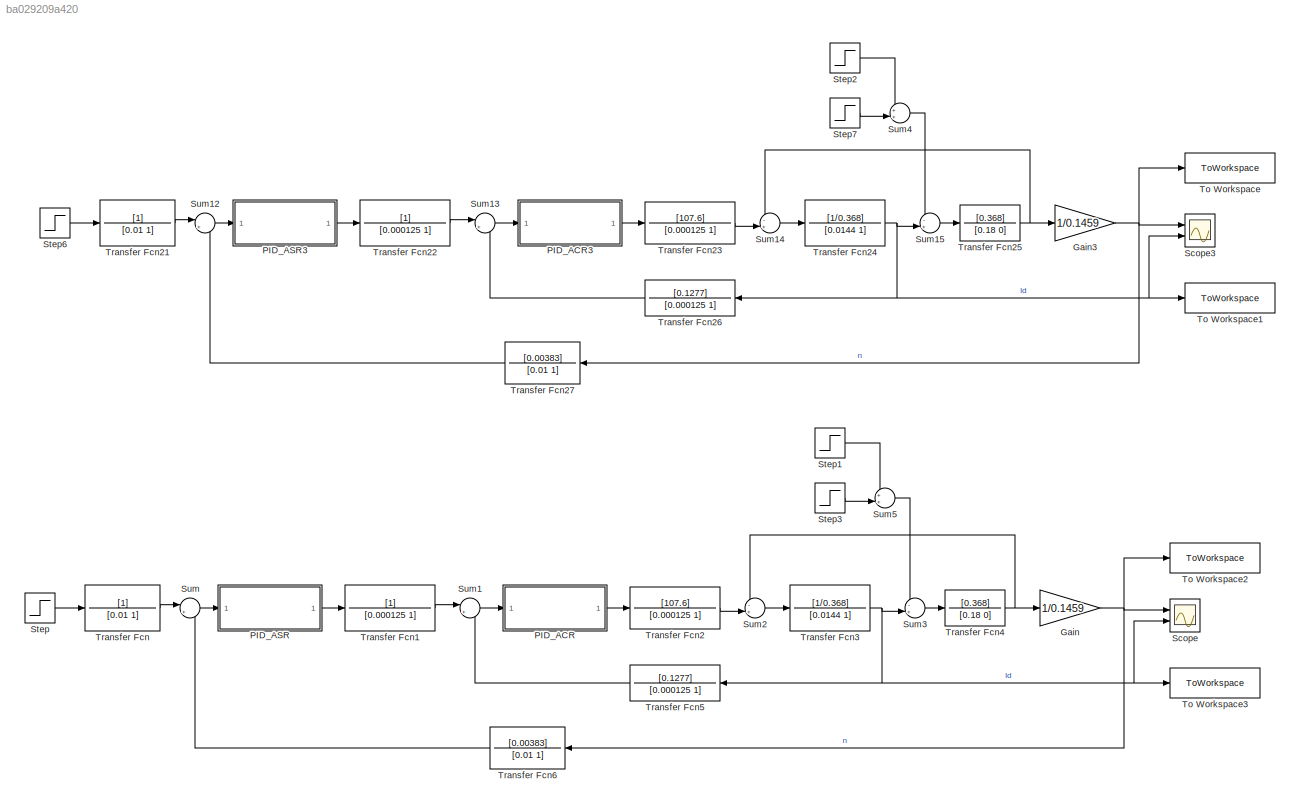
MODEL slx_ba029209a420
KIND model
CONFIG AbsTol = auto
CONFIG EnableMultiTasking = off
CONFIG FixedStep = auto
CONFIG MaxStep = 1e-5
CONFIG MinStep = auto
CONFIG RelTol = 1e-3
CONFIG SampleTimeConstraint = Unconstrained
CONFIG Solver = ode45
CONFIG SolverName = ode45
CONFIG StartTime = 0.0
CONFIG StopTime = 50.0
BLOCK [Gain] Gain
  Gain = 1/0.1459
BLOCK [Gain] Gain3
  Gain = 1/0.1459
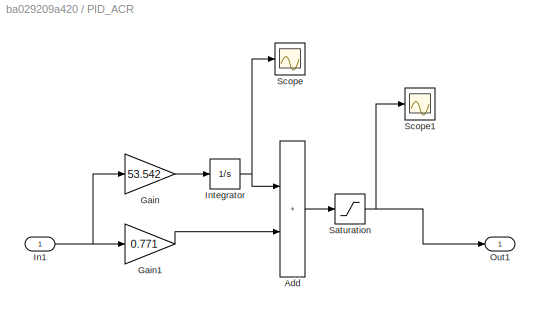
BLOCK [SubSystem] PID_ACR
  Ports = [1, 1]
  RequestExecContextInheritance = off
BLOCK [Sum] PID_ACR/Add
  IconShape = rectangular
  Ports = [2, 1]
BLOCK [Gain] PID_ACR/Gain
  Gain = 53.542
BLOCK [Gain] PID_ACR/Gain1
  Gain = 0.771
BLOCK [Inport] PID_ACR/In1
BLOCK [Integrator] PID_ACR/Integrator
  LimitOutput = on
  LowerSaturationLimit = -5
  Ports = [1, 1]
  UpperSaturationLimit = 5
BLOCK [Outport] PID_ACR/Out1
BLOCK [Saturate] PID_ACR/Saturation
  LowerLimit = -5
  UpperLimit = 5
BLOCK [Scope] PID_ACR/Scope
  Floating = off
  NumInputPorts = 1
  Ports = [1]
  ScopeSpecificationString = Simulink.scopes.TimeScopeBlockCfg('CurrentConfiguration', extmgr.ConfigurationSet(extmgr.Configuration('Core','General UI',true),extmgr.Configuration('Core','Source UI',true),extmgr.Configuration('Sources','WiredSimulink',true,'DataLoggingVariableName','ScopeData3'),extmgr.Configuration('Visuals','Time Domain',true,'SerializedDisplays',{struct('MinYLimReal','-0.47573','MaxYLimReal','4.28156','YLab...<+1402ch>
BLOCK [Scope] PID_ACR/Scope1
  Floating = off
  NumInputPorts = 1
  Ports = [1]
  ScopeSpecificationString = Simulink.scopes.TimeScopeBlockCfg('CurrentConfiguration', extmgr.ConfigurationSet(extmgr.Configuration('Core','General UI',true),extmgr.Configuration('Core','Source UI',true),extmgr.Configuration('Sources','WiredSimulink',true,'DataLoggingVariableName','ScopeData4'),extmgr.Configuration('Visuals','Time Domain',true,'SerializedDisplays',{struct('MinYLimReal','-0.62847','MaxYLimReal','5.62539','YLab...<+1402ch>
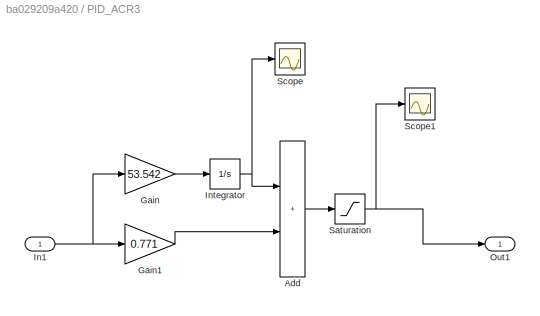
BLOCK [SubSystem] PID_ACR3
  Ports = [1, 1]
  RequestExecContextInheritance = off
BLOCK [Sum] PID_ACR3/Add
  IconShape = rectangular
  Ports = [2, 1]
BLOCK [Gain] PID_ACR3/Gain
  Gain = 53.542
BLOCK [Gain] PID_ACR3/Gain1
  Gain = 0.771
BLOCK [Inport] PID_ACR3/In1
BLOCK [Integrator] PID_ACR3/Integrator
  LimitOutput = on
  LowerSaturationLimit = -5
  Ports = [1, 1]
  UpperSaturationLimit = 5
BLOCK [Outport] PID_ACR3/Out1
BLOCK [Saturate] PID_ACR3/Saturation
  LowerLimit = -5
  UpperLimit = 5
BLOCK [Scope] PID_ACR3/Scope
  Floating = off
  NumInputPorts = 1
  Ports = [1]
  ScopeSpecificationString = Simulink.scopes.TimeScopeBlockCfg('CurrentConfiguration', extmgr.ConfigurationSet(extmgr.Configuration('Core','General UI',true),extmgr.Configuration('Core','Source UI',true),extmgr.Configuration('Sources','WiredSimulink',true,'DataLoggingVariableName','ScopeData3'),extmgr.Configuration('Visuals','Time Domain',true,'SerializedDisplays',{struct('MinYLimReal','-0.47573','MaxYLimReal','4.28156','YLab...<+1402ch>
BLOCK [Scope] PID_ACR3/Scope1
  Floating = off
  NumInputPorts = 1
  Ports = [1]
  ScopeSpecificationString = Simulink.scopes.TimeScopeBlockCfg('CurrentConfiguration', extmgr.ConfigurationSet(extmgr.Configuration('Core','General UI',true),extmgr.Configuration('Core','Source UI',true),extmgr.Configuration('Sources','WiredSimulink',true,'DataLoggingVariableName','ScopeData4'),extmgr.Configuration('Visuals','Time Domain',true,'SerializedDisplays',{struct('MinYLimReal','-0.62847','MaxYLimReal','5.62539','YLab...<+1402ch>
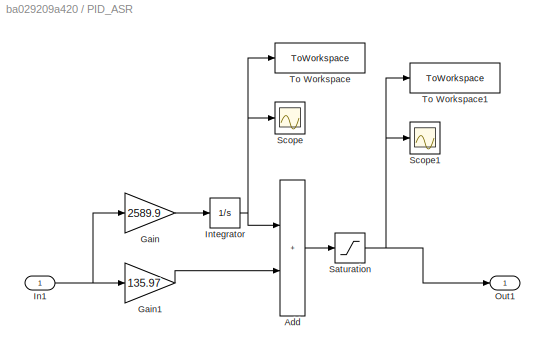
BLOCK [SubSystem] PID_ASR
  Ports = [1, 1]
  RequestExecContextInheritance = off
BLOCK [Sum] PID_ASR/Add
  IconShape = rectangular
  Ports = [2, 1]
BLOCK [Gain] PID_ASR/Gain
  Gain = 2589.9
BLOCK [Gain] PID_ASR/Gain1
  Gain = 135.97
BLOCK [Inport] PID_ASR/In1
BLOCK [Integrator] PID_ASR/Integrator
  LimitOutput = on
  LowerSaturationLimit = -10
  Ports = [1, 1]
  UpperSaturationLimit = 10
BLOCK [Outport] PID_ASR/Out1
BLOCK [Saturate] PID_ASR/Saturation
  LowerLimit = -10
  UpperLimit = 10
BLOCK [Scope] PID_ASR/Scope
  Floating = off
  NumInputPorts = 1
  Ports = [1]
  ScopeSpecificationString = Simulink.scopes.TimeScopeBlockCfg('CurrentConfiguration', extmgr.ConfigurationSet(extmgr.Configuration('Core','General UI',true),extmgr.Configuration('Core','Source UI',true),extmgr.Configuration('Sources','WiredSimulink',true,'DataLoggingVariableName','ScopeData1'),extmgr.Configuration('Visuals','Time Domain',true,'SerializedDisplays',{struct('MinYLimReal','-1.25','MaxYLimReal','11.25','YLabelRea...<+1355ch>
BLOCK [Scope] PID_ASR/Scope1
  Floating = off
  NumInputPorts = 1
  Ports = [1]
  ScopeSpecificationString = Simulink.scopes.TimeScopeBlockCfg('CurrentConfiguration', extmgr.ConfigurationSet(extmgr.Configuration('Core','General UI',true),extmgr.Configuration('Core','Source UI',true),extmgr.Configuration('Sources','WiredSimulink',true,'DataLoggingVariableName','ScopeData2'),extmgr.Configuration('Visuals','Time Domain',true,'SerializedDisplays',{struct('MinYLimReal','-1.25','MaxYLimReal','11.25','YLabelRea...<+1355ch>
BLOCK [ToWorkspace] PID_ASR/To Workspace
  FixptAsFi = on
  MaxDataPoints = inf
  Ports = [1]
  SampleTime = -1
  SaveFormat = Timeseries
  VariableName = ASR_Iout
BLOCK [ToWorkspace] PID_ASR/To Workspace1
  FixptAsFi = on
  MaxDataPoints = inf
  Ports = [1]
  SampleTime = -1
  SaveFormat = Timeseries
  VariableName = ASR_out
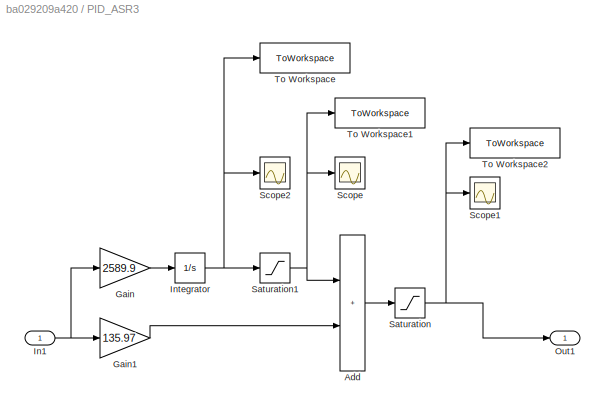
BLOCK [SubSystem] PID_ASR3
  Ports = [1, 1]
  RequestExecContextInheritance = off
BLOCK [Sum] PID_ASR3/Add
  IconShape = rectangular
  Ports = [2, 1]
BLOCK [Gain] PID_ASR3/Gain
  Gain = 2589.9
BLOCK [Gain] PID_ASR3/Gain1
  Gain = 135.97
BLOCK [Inport] PID_ASR3/In1
BLOCK [Integrator] PID_ASR3/Integrator
  LowerSaturationLimit = -10
  Ports = [1, 1]
  UpperSaturationLimit = 10
BLOCK [Outport] PID_ASR3/Out1
BLOCK [Saturate] PID_ASR3/Saturation
  LowerLimit = -10
  UpperLimit = 10
BLOCK [Saturate] PID_ASR3/Saturation1
  LowerLimit = -10
  UpperLimit = 10
BLOCK [Scope] PID_ASR3/Scope
  Floating = off
  NumInputPorts = 1
  Ports = [1]
  ScopeSpecificationString = Simulink.scopes.TimeScopeBlockCfg('CurrentConfiguration', extmgr.ConfigurationSet(extmgr.Configuration('Core','General UI',true),extmgr.Configuration('Core','Source UI',true),extmgr.Configuration('Sources','WiredSimulink',true,'DataLoggingVariableName','ScopeData1'),extmgr.Configuration('Visuals','Time Domain',true,'SerializedDisplays',{struct('MinYLimReal','-1.25','MaxYLimReal','11.25','YLabelRea...<+1356ch>
BLOCK [Scope] PID_ASR3/Scope1
  Floating = off
  NumInputPorts = 1
  Ports = [1]
  ScopeSpecificationString = Simulink.scopes.TimeScopeBlockCfg('CurrentConfiguration', extmgr.ConfigurationSet(extmgr.Configuration('Core','General UI',true),extmgr.Configuration('Core','Source UI',true),extmgr.Configuration('Sources','WiredSimulink',true,'DataLoggingVariableName','ScopeData2'),extmgr.Configuration('Visuals','Time Domain',true,'SerializedDisplays',{struct('MinYLimReal','-1.25','MaxYLimReal','11.25','YLabelRea...<+1388ch>
BLOCK [Scope] PID_ASR3/Scope2
  Floating = off
  NumInputPorts = 1
  Ports = [1]
  ScopeSpecificationString = Simulink.scopes.TimeScopeBlockCfg('CurrentConfiguration', extmgr.ConfigurationSet(extmgr.Configuration('Core','General UI',true),extmgr.Configuration('Core','Source UI',true),extmgr.Configuration('Sources','WiredSimulink',true,'DataLoggingVariableName','ScopeData5'),extmgr.Configuration('Visuals','Time Domain',true,'SerializedDisplays',{struct('MinYLimReal','-11589.28529','MaxYLimReal','104303.567...<+1403ch>
BLOCK [ToWorkspace] PID_ASR3/To Workspace
  FixptAsFi = on
  MaxDataPoints = inf
  Ports = [1]
  SampleTime = -1
  SaveFormat = Timeseries
  VariableName = ASR3_Iout2
BLOCK [ToWorkspace] PID_ASR3/To Workspace1
  FixptAsFi = on
  MaxDataPoints = inf
  Ports = [1]
  SampleTime = -1
  SaveFormat = Timeseries
  VariableName = ASR3_Iout
BLOCK [ToWorkspace] PID_ASR3/To Workspace2
  FixptAsFi = on
  MaxDataPoints = inf
  Ports = [1]
  SampleTime = -1
  SaveFormat = Timeseries
  VariableName = ASR3_out
BLOCK [Scope] Scope
  Floating = off
  NumInputPorts = 2
  Ports = [2]
  ScopeSpecificationString = Simulink.scopes.TimeScopeBlockCfg('CurrentConfiguration', extmgr.ConfigurationSet(extmgr.Configuration('Core','General UI',true),extmgr.Configuration('Core','Source UI',true),extmgr.Configuration('Sources','WiredSimulink',true,'DataLoggingVariableName','ScopeData1'),extmgr.Configuration('Visuals','Time Domain',true,'SerializedDisplays',{struct('MinYLimReal','-327.62521','MaxYLimReal','2945.26664',...<+2090ch>
BLOCK [Scope] Scope3
  Floating = off
  NumInputPorts = 2
  Ports = [2]
  ScopeSpecificationString = Simulink.scopes.TimeScopeBlockCfg('CurrentConfiguration', extmgr.ConfigurationSet(extmgr.Configuration('Core','General UI',true),extmgr.Configuration('Core','Source UI',true),extmgr.Configuration('Sources','WiredSimulink',true,'DataLoggingVariableName','ScopeData2'),extmgr.Configuration('Visuals','Time Domain',true,'SerializedDisplays',{struct('MinYLimReal','-327.62521','MaxYLimReal','2945.26664',...<+2088ch>
BLOCK [Step] Step
  After = 10
  SampleTime = 0
  Time = 0
BLOCK [Step] Step1
  After = 20
  SampleTime = 0
  Time = 20
BLOCK [Step] Step2
  After = 20
  SampleTime = 0
  Time = 20
BLOCK [Step] Step3
  After = 52.2
  SampleTime = 0
  Time = 0
BLOCK [Step] Step6
  After = 10
  SampleTime = 0
  Time = 0
BLOCK [Step] Step7
  After = 52.2
  SampleTime = 0
  Time = 0
BLOCK [Sum] Sum
  Inputs = |+-
  Ports = [2, 1]
BLOCK [Sum] Sum1
  Inputs = |+-
  Ports = [2, 1]
BLOCK [Sum] Sum12
  Inputs = |+-
  Ports = [2, 1]
BLOCK [Sum] Sum13
  Inputs = |+-
  Ports = [2, 1]
BLOCK [Sum] Sum14
  Inputs = -+|
  Ports = [2, 1]
BLOCK [Sum] Sum15
  Inputs = -+|
  Ports = [2, 1]
BLOCK [Sum] Sum2
  Inputs = -+|
  Ports = [2, 1]
BLOCK [Sum] Sum3
  Inputs = -+|
  Ports = [2, 1]
BLOCK [Sum] Sum4
  Inputs = ++|
  Ports = [2, 1]
BLOCK [Sum] Sum5
  Inputs = ++|
  Ports = [2, 1]
BLOCK [ToWorkspace] To Workspace
  FixptAsFi = on
  MaxDataPoints = inf
  Ports = [1]
  SampleTime = -1
  SaveFormat = Timeseries
  VariableName = n3
BLOCK [ToWorkspace] To Workspace1
  FixptAsFi = on
  MaxDataPoints = inf
  Ports = [1]
  SampleTime = -1
  SaveFormat = Timeseries
  VariableName = Id3
BLOCK [ToWorkspace] To Workspace2
  FixptAsFi = on
  MaxDataPoints = inf
  Ports = [1]
  SampleTime = -1
  SaveFormat = Timeseries
  VariableName = n
BLOCK [ToWorkspace] To Workspace3
  FixptAsFi = on
  MaxDataPoints = inf
  Ports = [1]
  SampleTime = -1
  SaveFormat = Timeseries
  VariableName = Id
BLOCK [TransferFcn] Transfer Fcn
  Denominator = [0.01 1]
BLOCK [TransferFcn] Transfer Fcn1
  Denominator = [0.000125 1]
BLOCK [TransferFcn] Transfer Fcn2
  Denominator = [0.000125 1]
  Numerator = [107.6]
BLOCK [TransferFcn] Transfer Fcn21
  Denominator = [0.01 1]
BLOCK [TransferFcn] Transfer Fcn22
  Denominator = [0.000125 1]
BLOCK [TransferFcn] Transfer Fcn23
  Denominator = [0.000125 1]
  Numerator = [107.6]
BLOCK [TransferFcn] Transfer Fcn24
  Denominator = [0.0144 1]
  Numerator = [1/0.368]
BLOCK [TransferFcn] Transfer Fcn25
  Denominator = [0.18 0]
  Numerator = [0.368]
BLOCK [TransferFcn] Transfer Fcn26
  Denominator = [0.000125 1]
  Numerator = [0.1277]
BLOCK [TransferFcn] Transfer Fcn27
  Denominator = [0.01 1]
  Numerator = [0.00383]
BLOCK [TransferFcn] Transfer Fcn3
  Denominator = [0.0144 1]
  Numerator = [1/0.368]
BLOCK [TransferFcn] Transfer Fcn4
  Denominator = [0.18 0]
  Numerator = [0.368]
BLOCK [TransferFcn] Transfer Fcn5
  Denominator = [0.000125 1]
  Numerator = [0.1277]
BLOCK [TransferFcn] Transfer Fcn6
  Denominator = [0.01 1]
  Numerator = [0.00383]
NET Gain3:1 -> Scope3:1, To Workspace:1, Transfer Fcn27:1
NET Gain:1 -> Scope:1, To Workspace2:1, Transfer Fcn6:1
LINE PID_ACR/Add:1 -> PID_ACR/Saturation:1
LINE PID_ACR/Gain1:1 -> PID_ACR/Add:2
LINE PID_ACR/Gain:1 -> PID_ACR/Integrator:1
NET PID_ACR/In1:1 -> PID_ACR/Gain1:1, PID_ACR/Gain:1
NET PID_ACR/Integrator:1 -> PID_ACR/Add:1, PID_ACR/Scope:1
NET PID_ACR/Saturation:1 -> PID_ACR/Out1:1, PID_ACR/Scope1:1
LINE PID_ACR3/Add:1 -> PID_ACR3/Saturation:1
LINE PID_ACR3/Gain1:1 -> PID_ACR3/Add:2
LINE PID_ACR3/Gain:1 -> PID_ACR3/Integrator:1
NET PID_ACR3/In1:1 -> PID_ACR3/Gain1:1, PID_ACR3/Gain:1
NET PID_ACR3/Integrator:1 -> PID_ACR3/Add:1, PID_ACR3/Scope:1
NET PID_ACR3/Saturation:1 -> PID_ACR3/Out1:1, PID_ACR3/Scope1:1
LINE PID_ACR3:1 -> Transfer Fcn23:1
LINE PID_ACR:1 -> Transfer Fcn2:1
LINE PID_ASR/Add:1 -> PID_ASR/Saturation:1
LINE PID_ASR/Gain1:1 -> PID_ASR/Add:2
LINE PID_ASR/Gain:1 -> PID_ASR/Integrator:1
NET PID_ASR/In1:1 -> PID_ASR/Gain1:1, PID_ASR/Gain:1
NET PID_ASR/Integrator:1 -> PID_ASR/Add:1, PID_ASR/Scope:1, PID_ASR/To Workspace:1
NET PID_ASR/Saturation:1 -> PID_ASR/Out1:1, PID_ASR/Scope1:1, PID_ASR/To Workspace1:1
LINE PID_ASR3/Add:1 -> PID_ASR3/Saturation:1
LINE PID_ASR3/Gain1:1 -> PID_ASR3/Add:2
LINE PID_ASR3/Gain:1 -> PID_ASR3/Integrator:1
NET PID_ASR3/In1:1 -> PID_ASR3/Gain1:1, PID_ASR3/Gain:1
NET PID_ASR3/Integrator:1 -> PID_ASR3/Saturation1:1, PID_ASR3/Scope2:1, PID_ASR3/To Workspace:1
NET PID_ASR3/Saturation1:1 -> PID_ASR3/Add:1, PID_ASR3/Scope:1, PID_ASR3/To Workspace1:1
NET PID_ASR3/Saturation:1 -> PID_ASR3/Out1:1, PID_ASR3/Scope1:1, PID_ASR3/To Workspace2:1
LINE PID_ASR3:1 -> Transfer Fcn22:1
LINE PID_ASR:1 -> Transfer Fcn1:1
LINE Step1:1 -> Sum5:1
LINE Step2:1 -> Sum4:1
LINE Step3:1 -> Sum5:2
LINE Step6:1 -> Transfer Fcn21:1
LINE Step7:1 -> Sum4:2
LINE Step:1 -> Transfer Fcn:1
LINE Sum12:1 -> PID_ASR3:1
LINE Sum13:1 -> PID_ACR3:1
LINE Sum14:1 -> Transfer Fcn24:1
LINE Sum15:1 -> Transfer Fcn25:1
LINE Sum1:1 -> PID_ACR:1
LINE Sum2:1 -> Transfer Fcn3:1
LINE Sum3:1 -> Transfer Fcn4:1
LINE Sum4:1 -> Sum15:1
LINE Sum5:1 -> Sum3:1
LINE Sum:1 -> PID_ASR:1
LINE Transfer Fcn1:1 -> Sum1:1
LINE Transfer Fcn21:1 -> Sum12:1
LINE Transfer Fcn22:1 -> Sum13:1
LINE Transfer Fcn23:1 -> Sum14:2
NET Transfer Fcn24:1 -> Scope3:2, Sum15:2, To Workspace1:1, Transfer Fcn26:1
NET Transfer Fcn25:1 -> Gain3:1, Sum14:1
LINE Transfer Fcn26:1 -> Sum13:2
LINE Transfer Fcn27:1 -> Sum12:2
LINE Transfer Fcn2:1 -> Sum2:2
NET Transfer Fcn3:1 -> Scope:2, Sum3:2, To Workspace3:1, Transfer Fcn5:1
NET Transfer Fcn4:1 -> Gain:1, Sum2:1
LINE Transfer Fcn5:1 -> Sum1:2
LINE Transfer Fcn6:1 -> Sum:2
LINE Transfer Fcn:1 -> Sum:1
note: NET lines group one-source signal fan-out (src -> all destinations, sorted); 1:1 wires keep LINE
